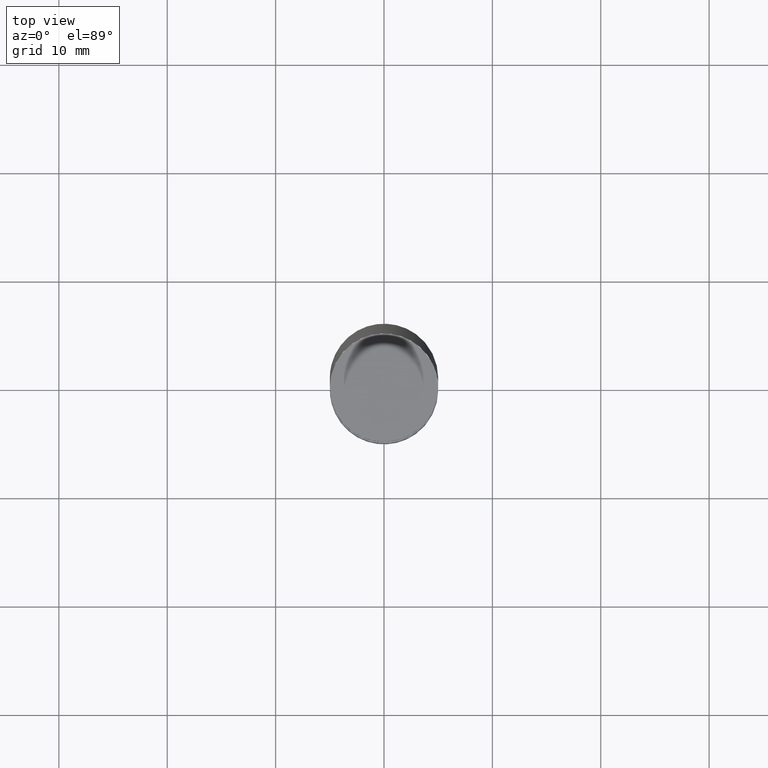
[diagram: clean part render]
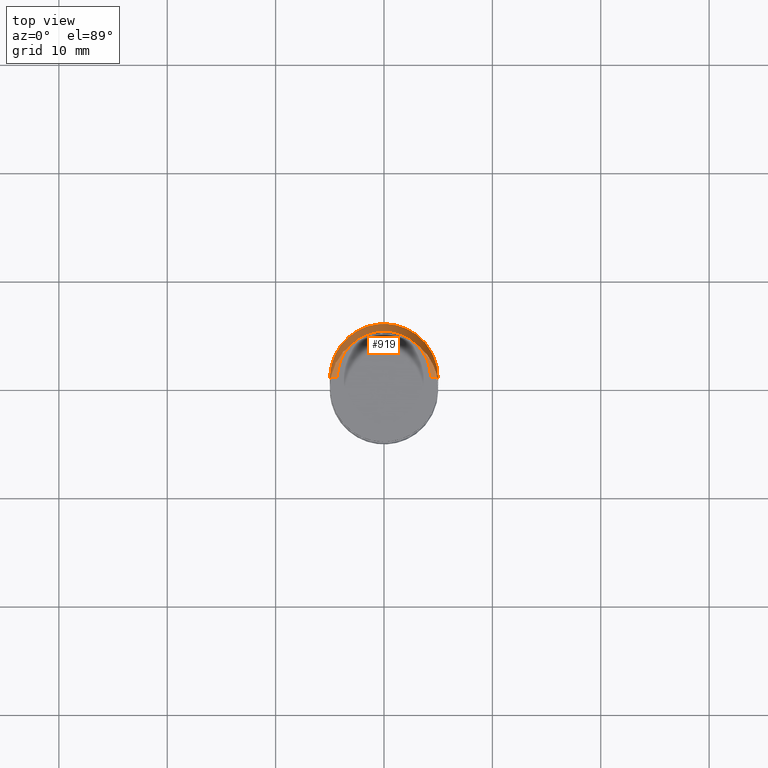
[diagram: same view with one face highlighted and labeled with its STEP entity id]
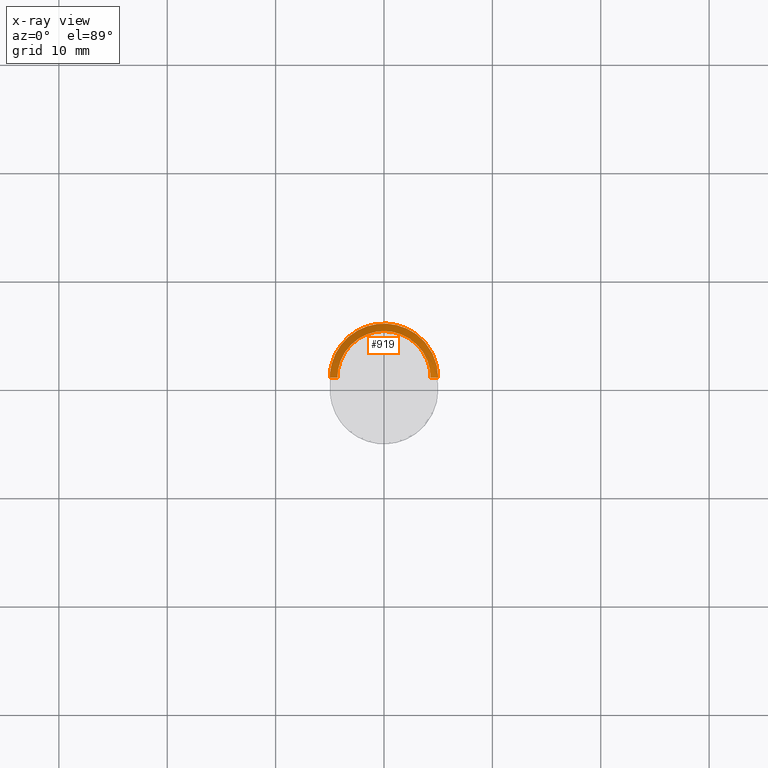
[diagram: x-ray of the same camera — body ghosted, the highlighted face saturated]
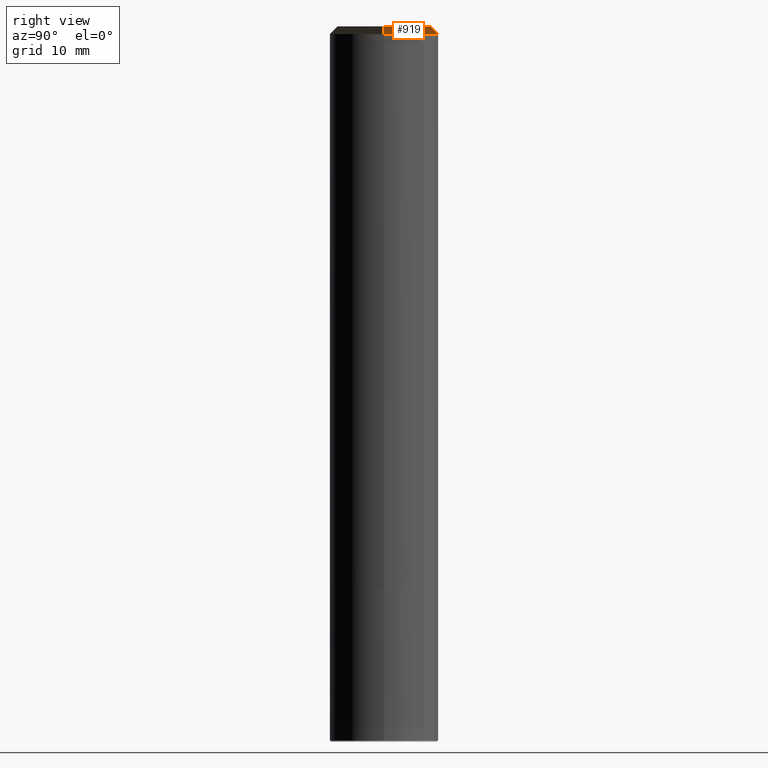
[diagram: same view with one face highlighted and labeled with its STEP entity id]
A machine part, top view. The second image highlights one B-rep face of the part: STEP entity #919.
The next image is the same camera in x-ray: the body ghosted, the highlighted face saturated — about 0% of this face is hidden behind the body in this view.
A second angle (right view) of the same face is appended — the face is thin or edge-on in the first view.
In plain terms, the highlighted face is a freeform B-spline surface patch.
Its self-contained STEP definition (entity closure, byte-faithful):
#670=CARTESIAN_POINT('',(5.0,0.0,51.299));
#671=CARTESIAN_POINT('',(5.0,5.0,51.299));
#672=CARTESIAN_POINT('',(0.0,5.0,51.299));
#673=CARTESIAN_POINT('',(-5.0,5.0,51.299));
#674=CARTESIAN_POINT('',(-5.0,0.0,51.299));
#675=CARTESIAN_POINT('',(4.3,0.0,51.999));
#676=CARTESIAN_POINT('',(4.3,4.3,51.999));
#677=CARTESIAN_POINT('',(0.0,4.3,51.999));
#678=CARTESIAN_POINT('',(-4.3,4.3,51.999));
#679=CARTESIAN_POINT('',(-4.3,0.0,51.999));
#900=(
BOUNDED_SURFACE()
B_SPLINE_SURFACE(1,2,(
(#670,#671,#672,#673,#674),
(#675,#676,#677,#678,#679)
), .UNSPECIFIED.,.F.,.F.,.F.)
B_SPLINE_SURFACE_WITH_KNOTS((2,2),(3,2,3),(
0.0,1.0),(
0.0,0.5,1.0), .UNSPECIFIED.)
GEOMETRIC_REPRESENTATION_ITEM()
RATIONAL_B_SPLINE_SURFACE(((1.0,0.707106781187,1.0,0.707106781187,1.0),
(1.0,0.707106781187,1.0,0.707106781187,1.0)
))
REPRESENTATION_ITEM('')
SURFACE()
);
#901=(
BOUNDED_CURVE()
B_SPLINE_CURVE(1,(#675,#670),.UNSPECIFIED.,.F.,.F.)
B_SPLINE_CURVE_WITH_KNOTS((2,2),
(0.0,1.0),.UNSPECIFIED.)
CURVE()
GEOMETRIC_REPRESENTATION_ITEM()
RATIONAL_B_SPLINE_CURVE((1.0,1.0))
REPRESENTATION_ITEM('')
);
#902=(
BOUNDED_CURVE()
B_SPLINE_CURVE(2,(#670,#671,#672,#673,#674),.UNSPECIFIED.,.F.,.F.)
B_SPLINE_CURVE_WITH_KNOTS((3,2,3),
(0.0,0.5,1.0),.UNSPECIFIED.)
CURVE()
GEOMETRIC_REPRESENTATION_ITEM()
RATIONAL_B_SPLINE_CURVE((1.0,0.707106781187,1.0,0.707106781187,1.0))
REPRESENTATION_ITEM('')
);
#903=(
BOUNDED_CURVE()
B_SPLINE_CURVE(1,(#674,#679),.UNSPECIFIED.,.F.,.F.)
B_SPLINE_CURVE_WITH_KNOTS((2,2),
(0.0,1.0),.UNSPECIFIED.)
CURVE()
GEOMETRIC_REPRESENTATION_ITEM()
RATIONAL_B_SPLINE_CURVE((1.0,1.0))
REPRESENTATION_ITEM('')
);
#904=(
BOUNDED_CURVE()
B_SPLINE_CURVE(2,(#679,#678,#677,#676,#675),.UNSPECIFIED.,.F.,.F.)
B_SPLINE_CURVE_WITH_KNOTS((3,2,3),
(0.0,0.5,1.0),.UNSPECIFIED.)
CURVE()
GEOMETRIC_REPRESENTATION_ITEM()
RATIONAL_B_SPLINE_CURVE((1.0,0.707106781187,1.0,0.707106781187,1.0))
REPRESENTATION_ITEM('')
);
#905=VERTEX_POINT('',#670);
#906=VERTEX_POINT('',#674);
#907=VERTEX_POINT('',#675);
#908=VERTEX_POINT('',#679);
#909=EDGE_CURVE('',#907,#905,#901,.T.);
#910=EDGE_CURVE('',#905,#906,#902,.T.);
#911=EDGE_CURVE('',#906,#908,#903,.T.);
#912=EDGE_CURVE('',#908,#907,#904,.T.);
#913=ORIENTED_EDGE('',*,*,#909,.T.);
#914=ORIENTED_EDGE('',*,*,#910,.T.);
#915=ORIENTED_EDGE('',*,*,#911,.T.);
#916=ORIENTED_EDGE('',*,*,#912,.T.);
#917=EDGE_LOOP('',(#913,#914,#915,#916));
#918=FACE_OUTER_BOUND('',#917,.T.);
#919=ADVANCED_FACE('',(#918),#900,.T.);